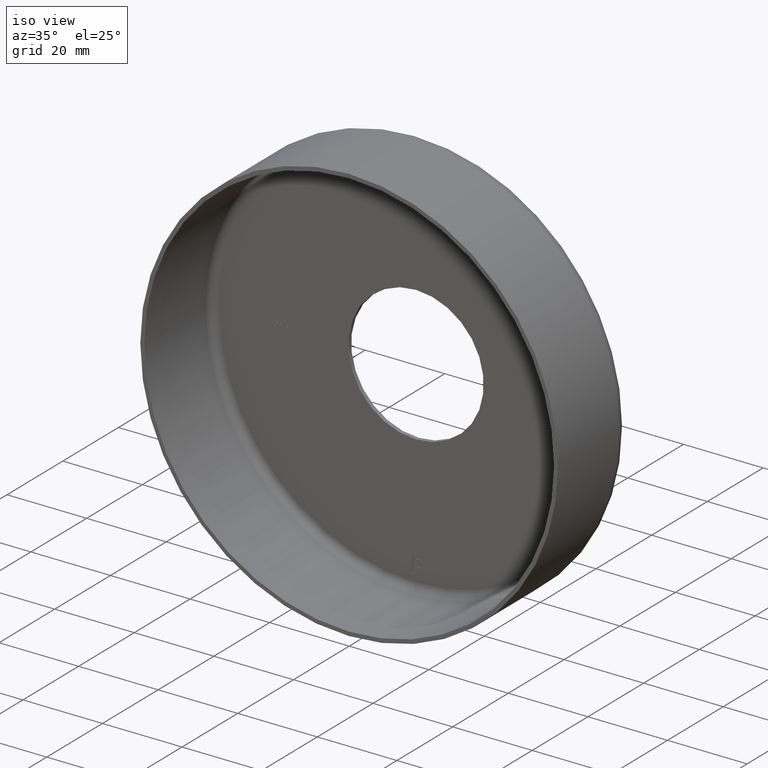
[diagram: clean part render]
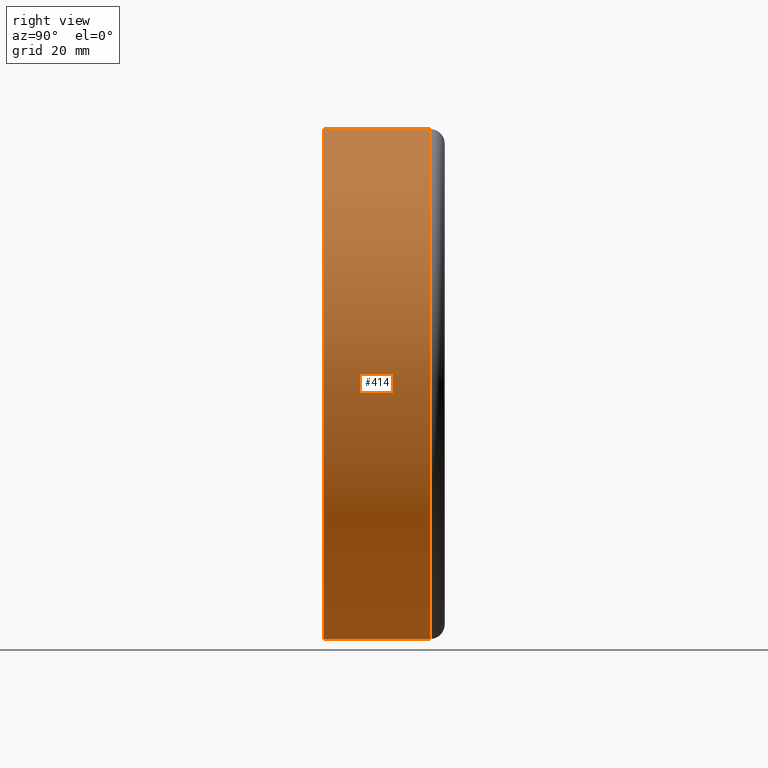
[diagram: tour spotlight — one face highlighted and labeled with its STEP entity id]
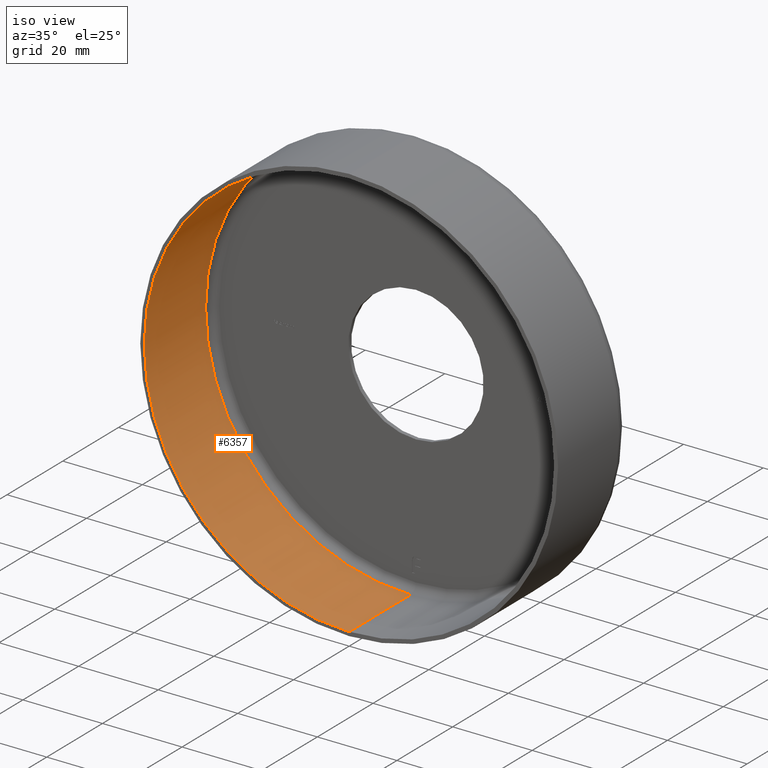
[diagram: tour spotlight — one face highlighted and labeled with its STEP entity id]
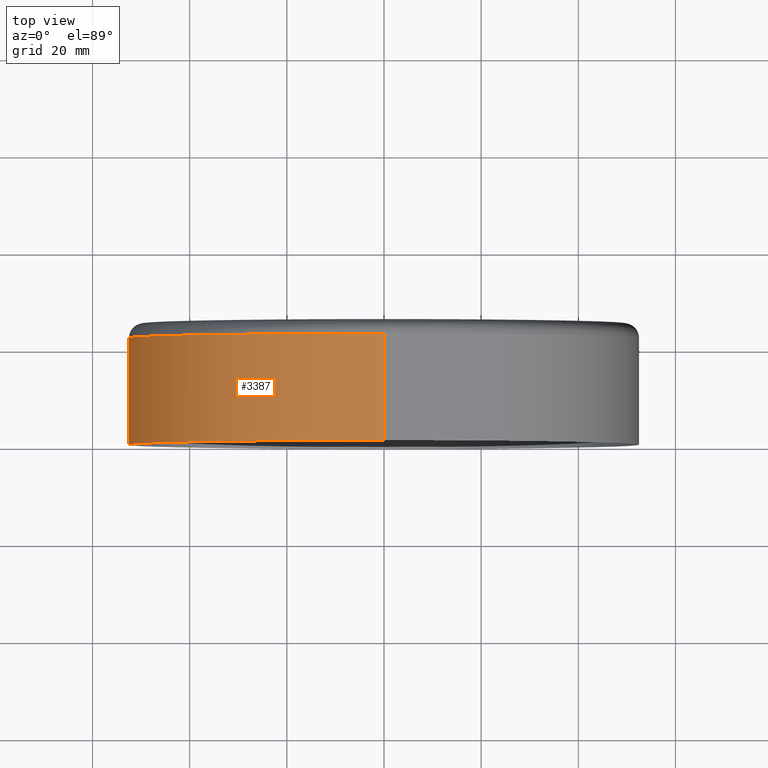
[diagram: tour spotlight — one face highlighted and labeled with its STEP entity id]
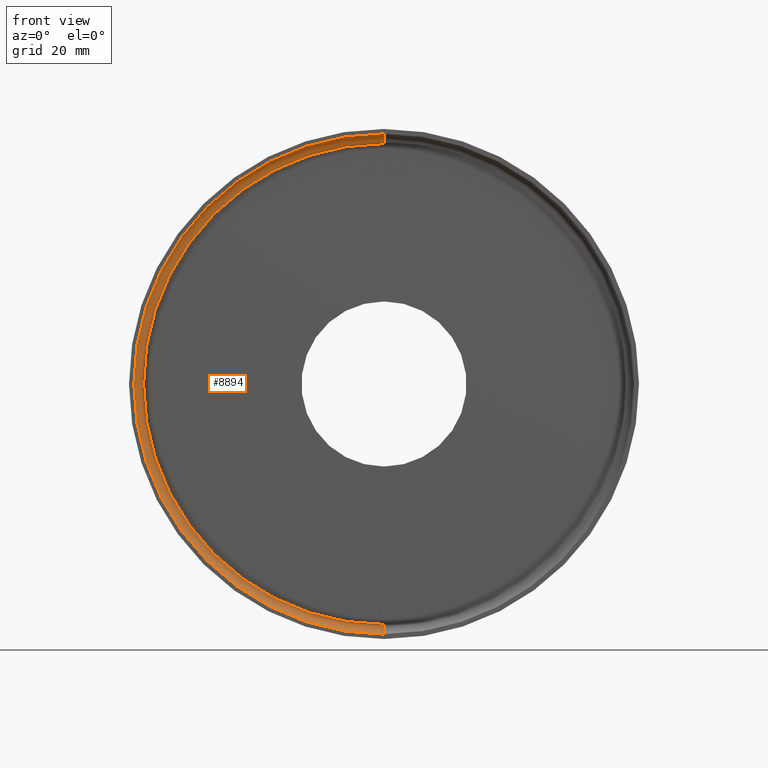
[diagram: tour spotlight — one face highlighted and labeled with its STEP entity id]
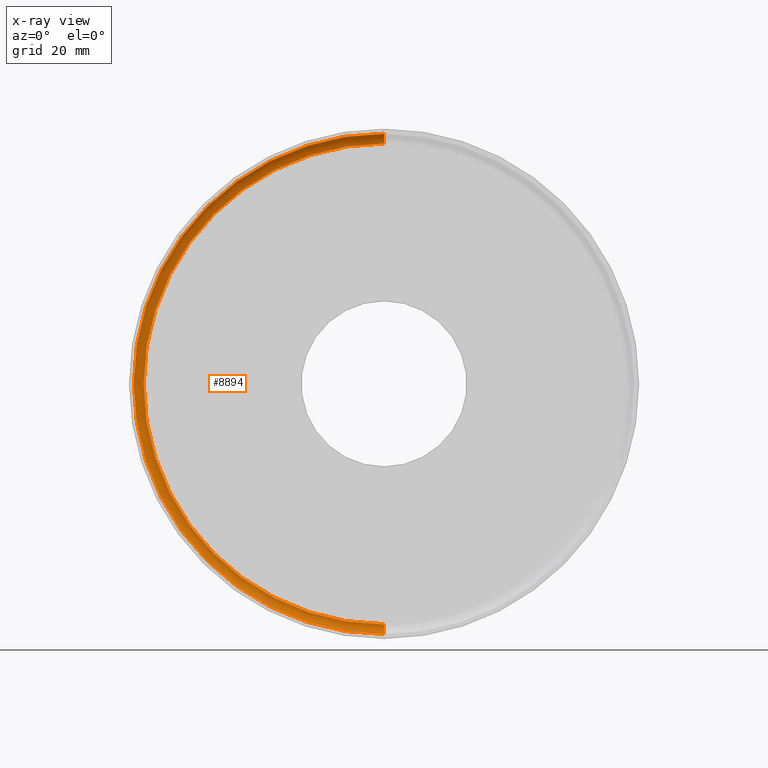
[diagram: x-ray of the same camera — body ghosted, this tour face saturated]
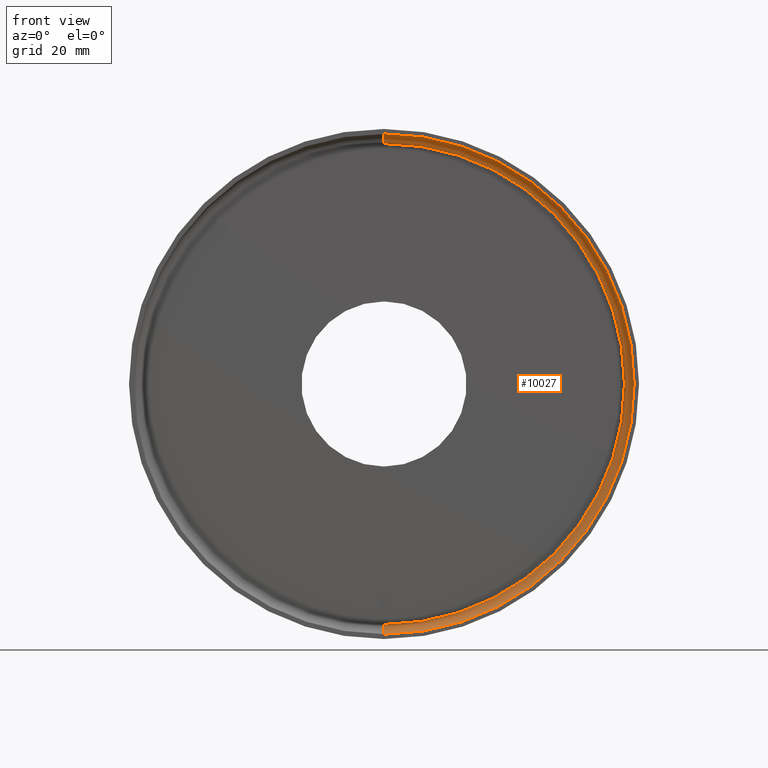
[diagram: tour spotlight — one face highlighted and labeled with its STEP entity id]
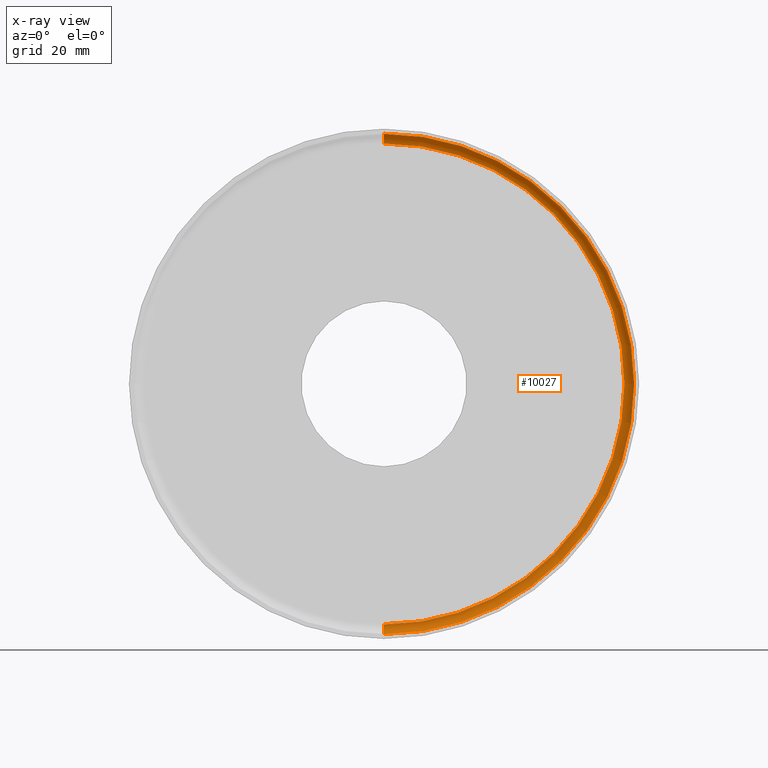
[diagram: x-ray of the same camera — body ghosted, this tour face saturated]
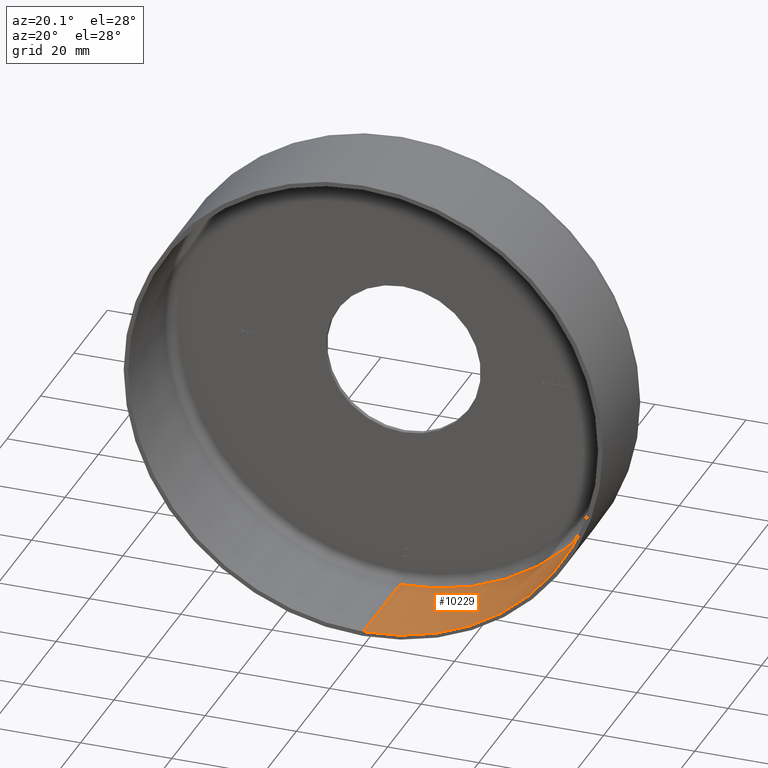
[diagram: tour spotlight — one face highlighted and labeled with its STEP entity id]
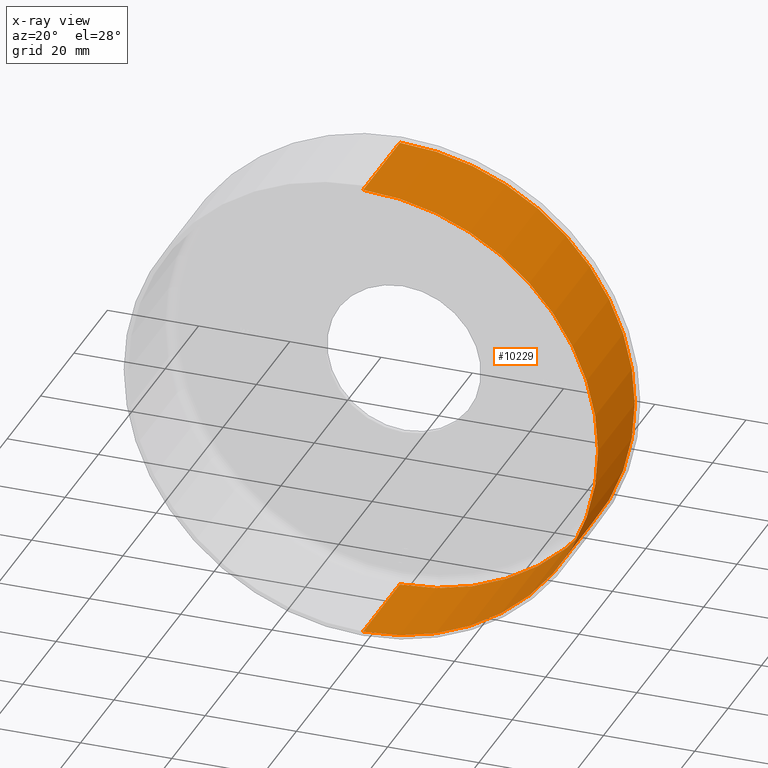
[diagram: x-ray of the same camera — body ghosted, this tour face saturated]
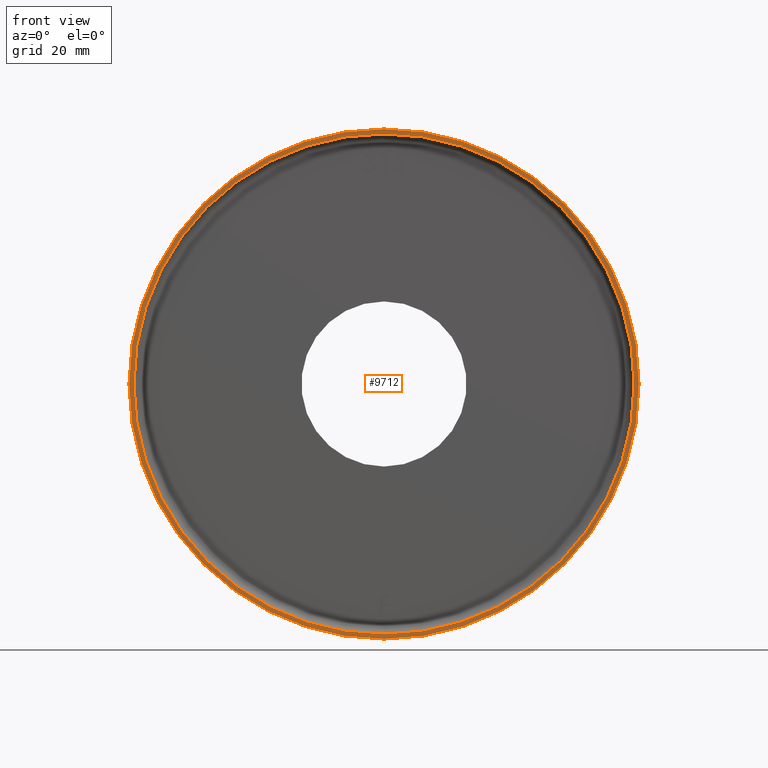
[diagram: tour spotlight — one face highlighted and labeled with its STEP entity id]
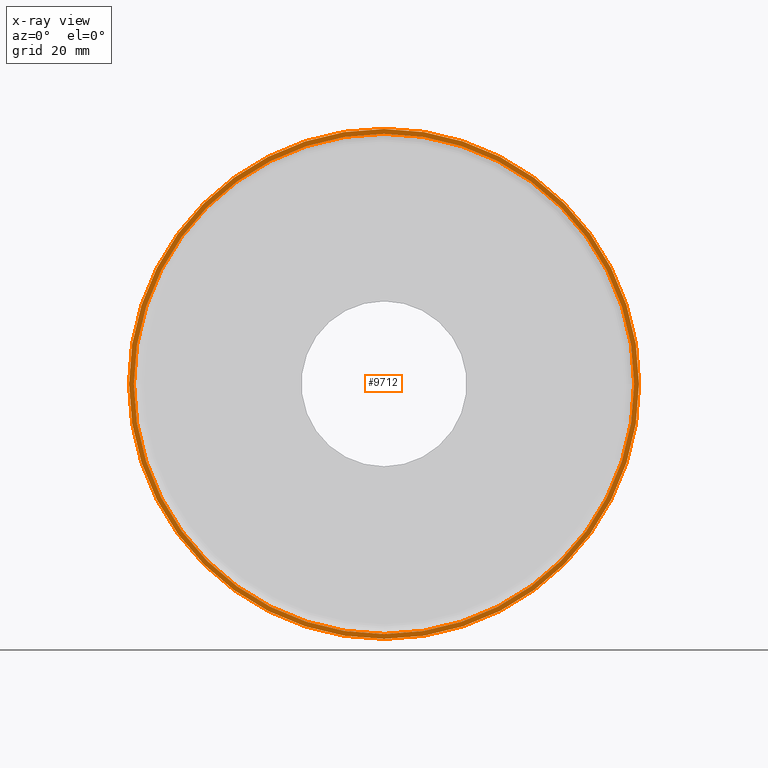
[diagram: x-ray of the same camera — body ghosted, this tour face saturated]
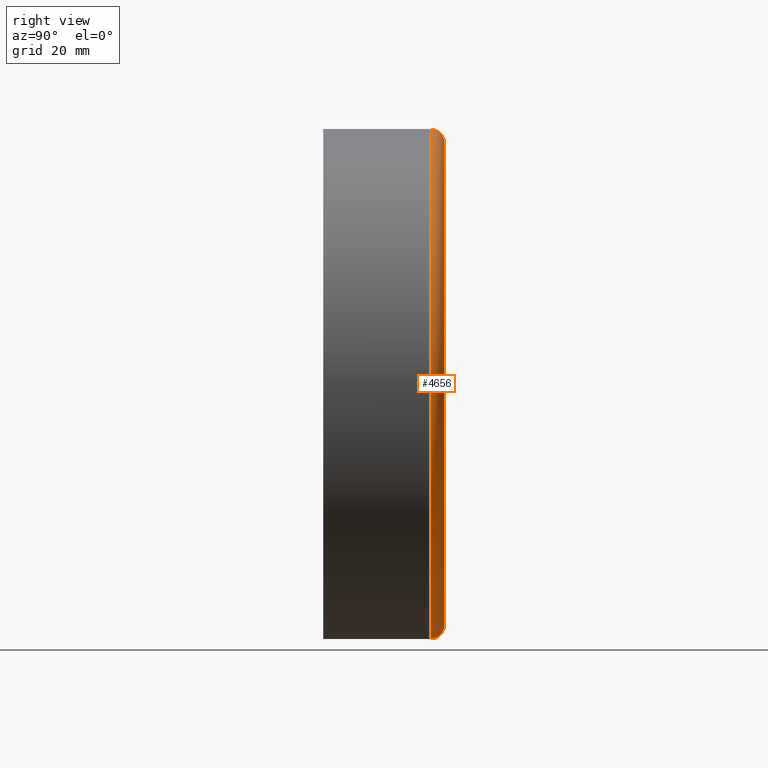
[diagram: tour spotlight — one face highlighted and labeled with its STEP entity id]
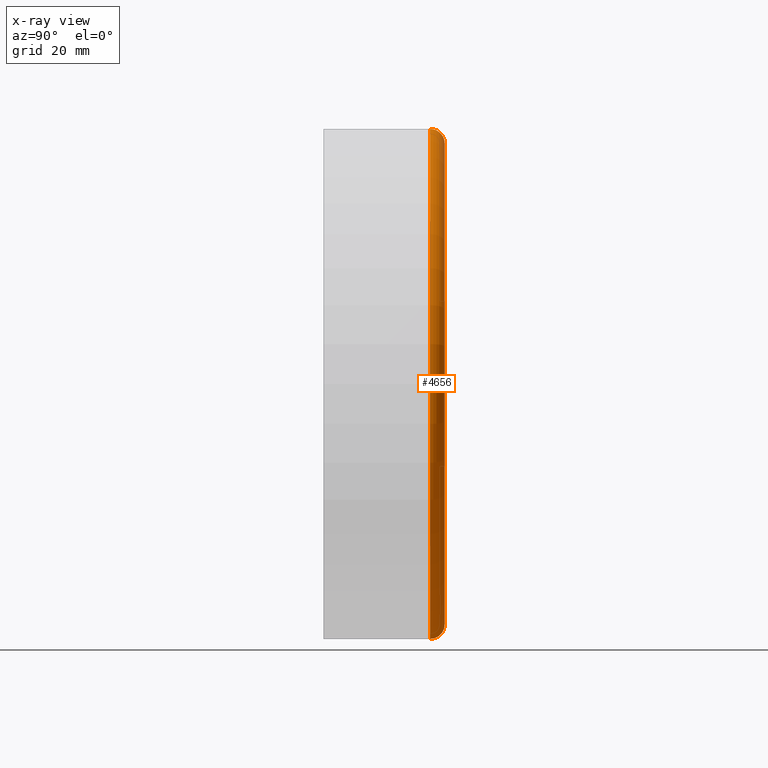
[diagram: x-ray of the same camera — body ghosted, this tour face saturated]
A machine part: a face-by-face anatomy tour. The part has 280 B-rep faces; the first image is the clean iso view, then the 8 largest visible faces are spotlighted one at a time (largest first), each with its STEP entity span.

Face 1 — right view, entity #414. In plain terms, the highlighted cylindrical surface (partial cylindrical patch) has radius 52.5 mm, axis along (-0, -1, -0).
Definition (entity closure, byte-faithful):
#414 = ADVANCED_FACE ( 'NONE', ( #13389 ), #12574, .T. ) ;
#864 = ORIENTED_EDGE ( 'NONE', *, *, #11518, .F. ) ;
#1006 = VERTEX_POINT ( 'NONE', #10151 ) ;
#1194 = DIRECTION ( 'NONE',  ( -0.000000000000000000, -1.000000000000000000, -0.000000000000000000 ) ) ;
#1372 = LINE ( 'NONE', #1881, #3014 ) ;
#1400 = CARTESIAN_POINT ( 'NONE',  ( 0.000000000000000000, 22.00000000000000355, 0.000000000000000000 ) ) ;
#1451 = CIRCLE ( 'NONE', #7148, 52.50000000000000711 ) ;
#1524 = EDGE_LOOP ( 'NONE', ( #3334, #9872, #864, #6268 ) ) ;
#1588 = DIRECTION ( 'NONE',  ( -0.000000000000000000, -1.000000000000000000, -0.000000000000000000 ) ) ;
#1881 = CARTESIAN_POINT ( 'NONE',  ( 0.000000000000000000, 0.000000000000000000, -52.50000000000000711 ) ) ;
#2123 = VECTOR ( 'NONE', #5783, 1000.000000000000000 ) ;
#2375 = DIRECTION ( 'NONE',  ( -0.000000000000000000, -1.000000000000000000, -0.000000000000000000 ) ) ;
#2627 = LINE ( 'NONE', #7940, #2123 ) ;
#2818 = DIRECTION ( 'NONE',  ( -0.000000000000000000, -1.000000000000000000, -0.000000000000000000 ) ) ;
#3014 = VECTOR ( 'NONE', #2818, 1000.000000000000000 ) ;
#3231 = DIRECTION ( 'NONE',  ( 0.000000000000000000, 0.000000000000000000, -1.000000000000000000 ) ) ;
#3294 = CARTESIAN_POINT ( 'NONE',  ( 6.429395695523604744E-15, 0.000000000000000000, 52.50000000000000711 ) ) ;
#3334 = ORIENTED_EDGE ( 'NONE', *, *, #13587, .T. ) ;
#4553 = VERTEX_POINT ( 'NONE', #3294 ) ;
#4982 = CARTESIAN_POINT ( 'NONE',  ( 6.429395695523604744E-15, 22.00000000000000355, 52.50000000000000711 ) ) ;
#5783 = DIRECTION ( 'NONE',  ( -0.000000000000000000, -1.000000000000000000, -0.000000000000000000 ) ) ;
#6268 = ORIENTED_EDGE ( 'NONE', *, *, #12822, .F. ) ;
#6399 = CARTESIAN_POINT ( 'NONE',  ( 0.000000000000000000, 0.000000000000000000, 0.000000000000000000 ) ) ;
#7148 = AXIS2_PLACEMENT_3D ( 'NONE', #1400, #1588, #7930 ) ;
#7598 = CARTESIAN_POINT ( 'NONE',  ( 0.000000000000000000, 0.000000000000000000, 0.000000000000000000 ) ) ;
#7930 = DIRECTION ( 'NONE',  ( 0.000000000000000000, 0.000000000000000000, -1.000000000000000000 ) ) ;
#7940 = CARTESIAN_POINT ( 'NONE',  ( 6.429395695523604744E-15, 0.000000000000000000, 52.50000000000000711 ) ) ;
#9570 = VERTEX_POINT ( 'NONE', #9792 ) ;
#9792 = CARTESIAN_POINT ( 'NONE',  ( 0.000000000000000000, 22.00000000000000355, -52.50000000000000711 ) ) ;
#9872 = ORIENTED_EDGE ( 'NONE', *, *, #13226, .T. ) ;
#10151 = CARTESIAN_POINT ( 'NONE',  ( 0.000000000000000000, 0.000000000000000000, -52.50000000000000711 ) ) ;
#10651 = AXIS2_PLACEMENT_3D ( 'NONE', #6399, #1194, #3231 ) ;
#11000 = DIRECTION ( 'NONE',  ( 0.000000000000000000, 0.000000000000000000, -1.000000000000000000 ) ) ;
#11518 = EDGE_CURVE ( 'NONE', #1006, #4553, #13648, .T. ) ;
#11773 = AXIS2_PLACEMENT_3D ( 'NONE', #7598, #2375, #11000 ) ;
#12574 = CYLINDRICAL_SURFACE ( 'NONE', #10651, 52.50000000000000711 ) ;
#12822 = EDGE_CURVE ( 'NONE', #9570, #1006, #1372, .T. ) ;
#12837 = VERTEX_POINT ( 'NONE', #4982 ) ;
#13226 = EDGE_CURVE ( 'NONE', #12837, #4553, #2627, .T. ) ;
#13389 = FACE_OUTER_BOUND ( 'NONE', #1524, .T. ) ;
#13587 = EDGE_CURVE ( 'NONE', #9570, #12837, #1451, .T. ) ;
#13648 = CIRCLE ( 'NONE', #11773, 52.50000000000000711 ) ;

Face 2 — iso view, entity #6357. In plain terms, the highlighted cylindrical surface (partial cylindrical patch) has radius 51.5 mm, axis along (-0, -1, -0).
Definition (entity closure, byte-faithful):
#2 = DIRECTION ( 'NONE',  ( -0.000000000000000000, -1.000000000000000000, -0.000000000000000000 ) ) ;
#789 = VERTEX_POINT ( 'NONE', #12910 ) ;
#827 = VERTEX_POINT ( 'NONE', #2446 ) ;
#1876 = EDGE_CURVE ( 'NONE', #827, #7422, #6456, .T. ) ;
#2414 = CARTESIAN_POINT ( 'NONE',  ( 0.000000000000000000, 22.00000000000000355, 0.000000000000000000 ) ) ;
#2446 = CARTESIAN_POINT ( 'NONE',  ( 6.306931015608869596E-15, -1.224646799147353207E-16, 51.50000000000000711 ) ) ;
#2483 = DIRECTION ( 'NONE',  ( -0.000000000000000000, -1.000000000000000000, -0.000000000000000000 ) ) ;
#2541 = VERTEX_POINT ( 'NONE', #13454 ) ;
#2611 = CIRCLE ( 'NONE', #9592, 51.50000000000000711 ) ;
#3048 = DIRECTION ( 'NONE',  ( -0.000000000000000000, -1.000000000000000000, -0.000000000000000000 ) ) ;
#3149 = CARTESIAN_POINT ( 'NONE',  ( 0.000000000000000000, -1.224646799147353207E-16, 0.000000000000000000 ) ) ;
#3320 = EDGE_CURVE ( 'NONE', #2541, #789, #2611, .T. ) ;
#3943 = ORIENTED_EDGE ( 'NONE', *, *, #3320, .F. ) ;
#4698 = CARTESIAN_POINT ( 'NONE',  ( 0.000000000000000000, 0.000000000000000000, 0.000000000000000000 ) ) ;
#5420 = CARTESIAN_POINT ( 'NONE',  ( 0.000000000000000000, -1.224646799147353207E-16, -51.50000000000000711 ) ) ;
#5470 = EDGE_CURVE ( 'NONE', #2541, #827, #7095, .T. ) ;
#5973 = LINE ( 'NONE', #11673, #11645 ) ;
#6357 = ADVANCED_FACE ( 'NONE', ( #10736 ), #12583, .F. ) ;
#6456 = CIRCLE ( 'NONE', #12457, 51.50000000000000711 ) ;
#6670 = DIRECTION ( 'NONE',  ( -0.000000000000000000, -1.000000000000000000, -0.000000000000000000 ) ) ;
#6762 = VECTOR ( 'NONE', #9982, 1000.000000000000000 ) ;
#7095 = LINE ( 'NONE', #8752, #6762 ) ;
#7422 = VERTEX_POINT ( 'NONE', #5420 ) ;
#7435 = DIRECTION ( 'NONE',  ( 0.000000000000000000, 0.000000000000000000, -1.000000000000000000 ) ) ;
#7775 = ORIENTED_EDGE ( 'NONE', *, *, #1876, .T. ) ;
#8752 = CARTESIAN_POINT ( 'NONE',  ( 6.306931015608869596E-15, 0.000000000000000000, 51.50000000000000711 ) ) ;
#9592 = AXIS2_PLACEMENT_3D ( 'NONE', #2414, #6670, #12955 ) ;
#9852 = EDGE_LOOP ( 'NONE', ( #3943, #12926, #7775, #10774 ) ) ;
#9982 = DIRECTION ( 'NONE',  ( -0.000000000000000000, -1.000000000000000000, -0.000000000000000000 ) ) ;
#10088 = DIRECTION ( 'NONE',  ( 0.000000000000000000, 0.000000000000000000, -1.000000000000000000 ) ) ;
#10736 = FACE_OUTER_BOUND ( 'NONE', #9852, .T. ) ;
#10774 = ORIENTED_EDGE ( 'NONE', *, *, #12245, .F. ) ;
#11645 = VECTOR ( 'NONE', #2, 1000.000000000000000 ) ;
#11673 = CARTESIAN_POINT ( 'NONE',  ( 0.000000000000000000, 0.000000000000000000, -51.50000000000000711 ) ) ;
#12245 = EDGE_CURVE ( 'NONE', #789, #7422, #5973, .T. ) ;
#12284 = AXIS2_PLACEMENT_3D ( 'NONE', #4698, #2483, #10088 ) ;
#12457 = AXIS2_PLACEMENT_3D ( 'NONE', #3149, #3048, #7435 ) ;
#12583 = CYLINDRICAL_SURFACE ( 'NONE', #12284, 51.50000000000000711 ) ;
#12910 = CARTESIAN_POINT ( 'NONE',  ( 0.000000000000000000, 22.00000000000000355, -51.50000000000000711 ) ) ;
#12926 = ORIENTED_EDGE ( 'NONE', *, *, #5470, .T. ) ;
#12955 = DIRECTION ( 'NONE',  ( 0.000000000000000000, 0.000000000000000000, -1.000000000000000000 ) ) ;
#13454 = CARTESIAN_POINT ( 'NONE',  ( 6.306931015608869596E-15, 22.00000000000000355, 51.50000000000000711 ) ) ;

Face 3 — top view, entity #3387. In plain terms, the highlighted cylindrical surface (partial cylindrical patch) has radius 52.5 mm, axis along (-0, -1, -0).
Definition (entity closure, byte-faithful):
#657 = FACE_OUTER_BOUND ( 'NONE', #9619, .T. ) ;
#1006 = VERTEX_POINT ( 'NONE', #10151 ) ;
#1372 = LINE ( 'NONE', #1881, #3014 ) ;
#1881 = CARTESIAN_POINT ( 'NONE',  ( 0.000000000000000000, 0.000000000000000000, -52.50000000000000711 ) ) ;
#2123 = VECTOR ( 'NONE', #5783, 1000.000000000000000 ) ;
#2627 = LINE ( 'NONE', #7940, #2123 ) ;
#2818 = DIRECTION ( 'NONE',  ( -0.000000000000000000, -1.000000000000000000, -0.000000000000000000 ) ) ;
#2826 = CIRCLE ( 'NONE', #9977, 52.50000000000000711 ) ;
#3014 = VECTOR ( 'NONE', #2818, 1000.000000000000000 ) ;
#3294 = CARTESIAN_POINT ( 'NONE',  ( 6.429395695523604744E-15, 0.000000000000000000, 52.50000000000000711 ) ) ;
#3357 = DIRECTION ( 'NONE',  ( -0.000000000000000000, -1.000000000000000000, -0.000000000000000000 ) ) ;
#3387 = ADVANCED_FACE ( 'NONE', ( #657 ), #9298, .T. ) ;
#4457 = ORIENTED_EDGE ( 'NONE', *, *, #4598, .T. ) ;
#4553 = VERTEX_POINT ( 'NONE', #3294 ) ;
#4554 = DIRECTION ( 'NONE',  ( -0.000000000000000000, -1.000000000000000000, -0.000000000000000000 ) ) ;
#4598 = EDGE_CURVE ( 'NONE', #12837, #9570, #10099, .T. ) ;
#4721 = ORIENTED_EDGE ( 'NONE', *, *, #10881, .F. ) ;
#4982 = CARTESIAN_POINT ( 'NONE',  ( 6.429395695523604744E-15, 22.00000000000000355, 52.50000000000000711 ) ) ;
#5783 = DIRECTION ( 'NONE',  ( -0.000000000000000000, -1.000000000000000000, -0.000000000000000000 ) ) ;
#6522 = DIRECTION ( 'NONE',  ( 0.000000000000000000, 0.000000000000000000, -1.000000000000000000 ) ) ;
#6923 = AXIS2_PLACEMENT_3D ( 'NONE', #10896, #9686, #6522 ) ;
#7617 = CARTESIAN_POINT ( 'NONE',  ( 0.000000000000000000, 0.000000000000000000, 0.000000000000000000 ) ) ;
#7940 = CARTESIAN_POINT ( 'NONE',  ( 6.429395695523604744E-15, 0.000000000000000000, 52.50000000000000711 ) ) ;
#9298 = CYLINDRICAL_SURFACE ( 'NONE', #10748, 52.50000000000000711 ) ;
#9570 = VERTEX_POINT ( 'NONE', #9792 ) ;
#9619 = EDGE_LOOP ( 'NONE', ( #10251, #4457, #13114, #4721 ) ) ;
#9686 = DIRECTION ( 'NONE',  ( -0.000000000000000000, -1.000000000000000000, -0.000000000000000000 ) ) ;
#9792 = CARTESIAN_POINT ( 'NONE',  ( 0.000000000000000000, 22.00000000000000355, -52.50000000000000711 ) ) ;
#9977 = AXIS2_PLACEMENT_3D ( 'NONE', #7617, #4554, #11984 ) ;
#10099 = CIRCLE ( 'NONE', #6923, 52.50000000000000711 ) ;
#10151 = CARTESIAN_POINT ( 'NONE',  ( 0.000000000000000000, 0.000000000000000000, -52.50000000000000711 ) ) ;
#10251 = ORIENTED_EDGE ( 'NONE', *, *, #13226, .F. ) ;
#10748 = AXIS2_PLACEMENT_3D ( 'NONE', #11929, #3357, #13044 ) ;
#10881 = EDGE_CURVE ( 'NONE', #4553, #1006, #2826, .T. ) ;
#10896 = CARTESIAN_POINT ( 'NONE',  ( 0.000000000000000000, 22.00000000000000355, 0.000000000000000000 ) ) ;
#11929 = CARTESIAN_POINT ( 'NONE',  ( 0.000000000000000000, 0.000000000000000000, 0.000000000000000000 ) ) ;
#11984 = DIRECTION ( 'NONE',  ( 0.000000000000000000, 0.000000000000000000, -1.000000000000000000 ) ) ;
#12822 = EDGE_CURVE ( 'NONE', #9570, #1006, #1372, .T. ) ;
#12837 = VERTEX_POINT ( 'NONE', #4982 ) ;
#13044 = DIRECTION ( 'NONE',  ( 0.000000000000000000, 0.000000000000000000, -1.000000000000000000 ) ) ;
#13114 = ORIENTED_EDGE ( 'NONE', *, *, #12822, .T. ) ;
#13226 = EDGE_CURVE ( 'NONE', #12837, #4553, #2627, .T. ) ;

Face 4 — front view, entity #8894. An x-ray twin of the same camera follows (body ghosted, this face saturated) — the face is partly hidden behind the body. In plain terms, the highlighted toroidal blend (fillet) surface has major radius 49.5 mm and minor (blend) radius 2 mm.
Definition (entity closure, byte-faithful):
#465 = EDGE_CURVE ( 'NONE', #4022, #2541, #11569, .T. ) ;
#728 = DIRECTION ( 'NONE',  ( -1.000000000000000000, 0.000000000000000000, 0.000000000000000000 ) ) ;
#789 = VERTEX_POINT ( 'NONE', #12910 ) ;
#943 = CARTESIAN_POINT ( 'NONE',  ( 0.000000000000000000, 22.00000000000000355, 0.000000000000000000 ) ) ;
#1234 = DIRECTION ( 'NONE',  ( -0.000000000000000000, -1.000000000000000000, -0.000000000000000000 ) ) ;
#1285 = CARTESIAN_POINT ( 'NONE',  ( 0.000000000000000000, 24.00000000000000000, -49.50000000000000000 ) ) ;
#1356 = FACE_OUTER_BOUND ( 'NONE', #2790, .T. ) ;
#1995 = DIRECTION ( 'NONE',  ( -0.000000000000000000, -1.000000000000000000, -0.000000000000000000 ) ) ;
#2414 = CARTESIAN_POINT ( 'NONE',  ( 0.000000000000000000, 22.00000000000000355, 0.000000000000000000 ) ) ;
#2541 = VERTEX_POINT ( 'NONE', #13454 ) ;
#2595 = CARTESIAN_POINT ( 'NONE',  ( 6.184466335694133659E-15, 24.00000000000000000, 49.50000000000000000 ) ) ;
#2611 = CIRCLE ( 'NONE', #9592, 51.50000000000000711 ) ;
#2790 = EDGE_LOOP ( 'NONE', ( #10164, #10050, #6809, #13548 ) ) ;
#2884 = DIRECTION ( 'NONE',  ( 0.000000000000000000, 0.000000000000000000, 1.000000000000000000 ) ) ;
#3320 = EDGE_CURVE ( 'NONE', #2541, #789, #2611, .T. ) ;
#3706 = TOROIDAL_SURFACE ( 'NONE', #4539, 49.50000000000000000, 2.000000000000000000 ) ;
#4022 = VERTEX_POINT ( 'NONE', #2595 ) ;
#4539 = AXIS2_PLACEMENT_3D ( 'NONE', #943, #1995, #9459 ) ;
#4643 = AXIS2_PLACEMENT_3D ( 'NONE', #9159, #728, #2884 ) ;
#4679 = DIRECTION ( 'NONE',  ( -1.224646799147353454E-16, 0.000000000000000000, -1.000000000000000000 ) ) ;
#4717 = CIRCLE ( 'NONE', #9609, 49.50000000000000000 ) ;
#5307 = CARTESIAN_POINT ( 'NONE',  ( 6.062001655779398511E-15, 22.00000000000000355, 49.50000000000000000 ) ) ;
#6670 = DIRECTION ( 'NONE',  ( -0.000000000000000000, -1.000000000000000000, -0.000000000000000000 ) ) ;
#6809 = ORIENTED_EDGE ( 'NONE', *, *, #3320, .T. ) ;
#7520 = DIRECTION ( 'NONE',  ( 1.000000000000000000, 0.000000000000000000, -1.224646799147353207E-16 ) ) ;
#7604 = CARTESIAN_POINT ( 'NONE',  ( 0.000000000000000000, 24.00000000000000000, 0.000000000000000000 ) ) ;
#8530 = EDGE_CURVE ( 'NONE', #4022, #10817, #4717, .T. ) ;
#8703 = DIRECTION ( 'NONE',  ( 0.000000000000000000, 0.000000000000000000, -1.000000000000000000 ) ) ;
#8894 = ADVANCED_FACE ( 'NONE', ( #1356 ), #3706, .F. ) ;
#9159 = CARTESIAN_POINT ( 'NONE',  ( 0.000000000000000000, 22.00000000000000355, -49.50000000000000000 ) ) ;
#9459 = DIRECTION ( 'NONE',  ( 0.000000000000000000, 0.000000000000000000, -1.000000000000000000 ) ) ;
#9592 = AXIS2_PLACEMENT_3D ( 'NONE', #2414, #6670, #12955 ) ;
#9609 = AXIS2_PLACEMENT_3D ( 'NONE', #7604, #1234, #8703 ) ;
#10050 = ORIENTED_EDGE ( 'NONE', *, *, #465, .T. ) ;
#10164 = ORIENTED_EDGE ( 'NONE', *, *, #8530, .F. ) ;
#10643 = CIRCLE ( 'NONE', #4643, 2.000000000000001776 ) ;
#10817 = VERTEX_POINT ( 'NONE', #1285 ) ;
#11569 = CIRCLE ( 'NONE', #12540, 2.000000000000001776 ) ;
#11703 = EDGE_CURVE ( 'NONE', #10817, #789, #10643, .T. ) ;
#12540 = AXIS2_PLACEMENT_3D ( 'NONE', #5307, #7520, #4679 ) ;
#12910 = CARTESIAN_POINT ( 'NONE',  ( 0.000000000000000000, 22.00000000000000355, -51.50000000000000711 ) ) ;
#12955 = DIRECTION ( 'NONE',  ( 0.000000000000000000, 0.000000000000000000, -1.000000000000000000 ) ) ;
#13454 = CARTESIAN_POINT ( 'NONE',  ( 6.306931015608869596E-15, 22.00000000000000355, 51.50000000000000711 ) ) ;
#13548 = ORIENTED_EDGE ( 'NONE', *, *, #11703, .F. ) ;

Face 5 — front view, entity #10027. An x-ray twin of the same camera follows (body ghosted, this face saturated) — the face is partly hidden behind the body. In plain terms, the highlighted toroidal blend (fillet) surface has major radius 49.5 mm and minor (blend) radius 2 mm.
Definition (entity closure, byte-faithful):
#465 = EDGE_CURVE ( 'NONE', #4022, #2541, #11569, .T. ) ;
#554 = CARTESIAN_POINT ( 'NONE',  ( 0.000000000000000000, 22.00000000000000355, 0.000000000000000000 ) ) ;
#728 = DIRECTION ( 'NONE',  ( -1.000000000000000000, 0.000000000000000000, 0.000000000000000000 ) ) ;
#789 = VERTEX_POINT ( 'NONE', #12910 ) ;
#1020 = FACE_OUTER_BOUND ( 'NONE', #11532, .T. ) ;
#1285 = CARTESIAN_POINT ( 'NONE',  ( 0.000000000000000000, 24.00000000000000000, -49.50000000000000000 ) ) ;
#2477 = AXIS2_PLACEMENT_3D ( 'NONE', #3121, #10627, #8513 ) ;
#2541 = VERTEX_POINT ( 'NONE', #13454 ) ;
#2595 = CARTESIAN_POINT ( 'NONE',  ( 6.184466335694133659E-15, 24.00000000000000000, 49.50000000000000000 ) ) ;
#2884 = DIRECTION ( 'NONE',  ( 0.000000000000000000, 0.000000000000000000, 1.000000000000000000 ) ) ;
#3121 = CARTESIAN_POINT ( 'NONE',  ( 0.000000000000000000, 24.00000000000000000, 0.000000000000000000 ) ) ;
#3441 = EDGE_CURVE ( 'NONE', #789, #2541, #10949, .T. ) ;
#3474 = CIRCLE ( 'NONE', #2477, 49.50000000000000000 ) ;
#3880 = ORIENTED_EDGE ( 'NONE', *, *, #11703, .T. ) ;
#4022 = VERTEX_POINT ( 'NONE', #2595 ) ;
#4068 = AXIS2_PLACEMENT_3D ( 'NONE', #554, #7984, #9060 ) ;
#4643 = AXIS2_PLACEMENT_3D ( 'NONE', #9159, #728, #2884 ) ;
#4679 = DIRECTION ( 'NONE',  ( -1.224646799147353454E-16, 0.000000000000000000, -1.000000000000000000 ) ) ;
#5307 = CARTESIAN_POINT ( 'NONE',  ( 6.062001655779398511E-15, 22.00000000000000355, 49.50000000000000000 ) ) ;
#5581 = CARTESIAN_POINT ( 'NONE',  ( 0.000000000000000000, 22.00000000000000355, 0.000000000000000000 ) ) ;
#6673 = AXIS2_PLACEMENT_3D ( 'NONE', #5581, #13041, #13080 ) ;
#7520 = DIRECTION ( 'NONE',  ( 1.000000000000000000, 0.000000000000000000, -1.224646799147353207E-16 ) ) ;
#7980 = ORIENTED_EDGE ( 'NONE', *, *, #11351, .F. ) ;
#7984 = DIRECTION ( 'NONE',  ( -0.000000000000000000, -1.000000000000000000, -0.000000000000000000 ) ) ;
#8513 = DIRECTION ( 'NONE',  ( 0.000000000000000000, 0.000000000000000000, -1.000000000000000000 ) ) ;
#8605 = ORIENTED_EDGE ( 'NONE', *, *, #465, .F. ) ;
#9060 = DIRECTION ( 'NONE',  ( 0.000000000000000000, 0.000000000000000000, -1.000000000000000000 ) ) ;
#9159 = CARTESIAN_POINT ( 'NONE',  ( 0.000000000000000000, 22.00000000000000355, -49.50000000000000000 ) ) ;
#10027 = ADVANCED_FACE ( 'NONE', ( #1020 ), #10346, .F. ) ;
#10346 = TOROIDAL_SURFACE ( 'NONE', #6673, 49.50000000000000000, 2.000000000000000000 ) ;
#10627 = DIRECTION ( 'NONE',  ( -0.000000000000000000, -1.000000000000000000, -0.000000000000000000 ) ) ;
#10643 = CIRCLE ( 'NONE', #4643, 2.000000000000001776 ) ;
#10817 = VERTEX_POINT ( 'NONE', #1285 ) ;
#10949 = CIRCLE ( 'NONE', #4068, 51.50000000000000711 ) ;
#11351 = EDGE_CURVE ( 'NONE', #10817, #4022, #3474, .T. ) ;
#11532 = EDGE_LOOP ( 'NONE', ( #8605, #7980, #3880, #12426 ) ) ;
#11569 = CIRCLE ( 'NONE', #12540, 2.000000000000001776 ) ;
#11703 = EDGE_CURVE ( 'NONE', #10817, #789, #10643, .T. ) ;
#12426 = ORIENTED_EDGE ( 'NONE', *, *, #3441, .T. ) ;
#12540 = AXIS2_PLACEMENT_3D ( 'NONE', #5307, #7520, #4679 ) ;
#12910 = CARTESIAN_POINT ( 'NONE',  ( 0.000000000000000000, 22.00000000000000355, -51.50000000000000711 ) ) ;
#13041 = DIRECTION ( 'NONE',  ( -0.000000000000000000, -1.000000000000000000, -0.000000000000000000 ) ) ;
#13080 = DIRECTION ( 'NONE',  ( 0.000000000000000000, 0.000000000000000000, -1.000000000000000000 ) ) ;
#13454 = CARTESIAN_POINT ( 'NONE',  ( 6.306931015608869596E-15, 22.00000000000000355, 51.50000000000000711 ) ) ;

Face 6 — auxiliary view, entity #10229. An x-ray twin of the same camera follows (body ghosted, this face saturated) — the face is partly hidden behind the body. In plain terms, the highlighted cylindrical surface (partial cylindrical patch) has radius 51.5 mm, axis along (-0, -1, -0).
Definition (entity closure, byte-faithful):
#2 = DIRECTION ( 'NONE',  ( -0.000000000000000000, -1.000000000000000000, -0.000000000000000000 ) ) ;
#554 = CARTESIAN_POINT ( 'NONE',  ( 0.000000000000000000, 22.00000000000000355, 0.000000000000000000 ) ) ;
#705 = CYLINDRICAL_SURFACE ( 'NONE', #11138, 51.50000000000000711 ) ;
#789 = VERTEX_POINT ( 'NONE', #12910 ) ;
#827 = VERTEX_POINT ( 'NONE', #2446 ) ;
#1516 = DIRECTION ( 'NONE',  ( -0.000000000000000000, -1.000000000000000000, -0.000000000000000000 ) ) ;
#1681 = DIRECTION ( 'NONE',  ( 0.000000000000000000, 0.000000000000000000, -1.000000000000000000 ) ) ;
#2244 = ORIENTED_EDGE ( 'NONE', *, *, #3441, .F. ) ;
#2446 = CARTESIAN_POINT ( 'NONE',  ( 6.306931015608869596E-15, -1.224646799147353207E-16, 51.50000000000000711 ) ) ;
#2541 = VERTEX_POINT ( 'NONE', #13454 ) ;
#2671 = EDGE_LOOP ( 'NONE', ( #11170, #2244, #8855, #10262 ) ) ;
#3441 = EDGE_CURVE ( 'NONE', #789, #2541, #10949, .T. ) ;
#4068 = AXIS2_PLACEMENT_3D ( 'NONE', #554, #7984, #9060 ) ;
#5420 = CARTESIAN_POINT ( 'NONE',  ( 0.000000000000000000, -1.224646799147353207E-16, -51.50000000000000711 ) ) ;
#5470 = EDGE_CURVE ( 'NONE', #2541, #827, #7095, .T. ) ;
#5973 = LINE ( 'NONE', #11673, #11645 ) ;
#6342 = EDGE_CURVE ( 'NONE', #7422, #827, #7083, .T. ) ;
#6762 = VECTOR ( 'NONE', #9982, 1000.000000000000000 ) ;
#7083 = CIRCLE ( 'NONE', #10853, 51.50000000000000711 ) ;
#7095 = LINE ( 'NONE', #8752, #6762 ) ;
#7422 = VERTEX_POINT ( 'NONE', #5420 ) ;
#7984 = DIRECTION ( 'NONE',  ( -0.000000000000000000, -1.000000000000000000, -0.000000000000000000 ) ) ;
#8074 = CARTESIAN_POINT ( 'NONE',  ( 0.000000000000000000, 0.000000000000000000, 0.000000000000000000 ) ) ;
#8752 = CARTESIAN_POINT ( 'NONE',  ( 6.306931015608869596E-15, 0.000000000000000000, 51.50000000000000711 ) ) ;
#8848 = DIRECTION ( 'NONE',  ( 0.000000000000000000, 0.000000000000000000, -1.000000000000000000 ) ) ;
#8855 = ORIENTED_EDGE ( 'NONE', *, *, #12245, .T. ) ;
#9060 = DIRECTION ( 'NONE',  ( 0.000000000000000000, 0.000000000000000000, -1.000000000000000000 ) ) ;
#9152 = DIRECTION ( 'NONE',  ( -0.000000000000000000, -1.000000000000000000, -0.000000000000000000 ) ) ;
#9982 = DIRECTION ( 'NONE',  ( -0.000000000000000000, -1.000000000000000000, -0.000000000000000000 ) ) ;
#10047 = CARTESIAN_POINT ( 'NONE',  ( 0.000000000000000000, -1.224646799147353207E-16, 0.000000000000000000 ) ) ;
#10229 = ADVANCED_FACE ( 'NONE', ( #11509 ), #705, .F. ) ;
#10262 = ORIENTED_EDGE ( 'NONE', *, *, #6342, .T. ) ;
#10853 = AXIS2_PLACEMENT_3D ( 'NONE', #10047, #1516, #8848 ) ;
#10949 = CIRCLE ( 'NONE', #4068, 51.50000000000000711 ) ;
#11138 = AXIS2_PLACEMENT_3D ( 'NONE', #8074, #9152, #1681 ) ;
#11170 = ORIENTED_EDGE ( 'NONE', *, *, #5470, .F. ) ;
#11509 = FACE_OUTER_BOUND ( 'NONE', #2671, .T. ) ;
#11645 = VECTOR ( 'NONE', #2, 1000.000000000000000 ) ;
#11673 = CARTESIAN_POINT ( 'NONE',  ( 0.000000000000000000, 0.000000000000000000, -51.50000000000000711 ) ) ;
#12245 = EDGE_CURVE ( 'NONE', #789, #7422, #5973, .T. ) ;
#12910 = CARTESIAN_POINT ( 'NONE',  ( 0.000000000000000000, 22.00000000000000355, -51.50000000000000711 ) ) ;
#13454 = CARTESIAN_POINT ( 'NONE',  ( 6.306931015608869596E-15, 22.00000000000000355, 51.50000000000000711 ) ) ;

Face 7 — front view, entity #9712. An x-ray twin of the same camera follows (body ghosted, this face saturated) — the face is partly hidden behind the body. In plain terms, the highlighted planar face has unit normal (0, -1, -0).
Definition (entity closure, byte-faithful):
#827 = VERTEX_POINT ( 'NONE', #2446 ) ;
#1006 = VERTEX_POINT ( 'NONE', #10151 ) ;
#1516 = DIRECTION ( 'NONE',  ( -0.000000000000000000, -1.000000000000000000, -0.000000000000000000 ) ) ;
#1876 = EDGE_CURVE ( 'NONE', #827, #7422, #6456, .T. ) ;
#2179 = FACE_BOUND ( 'NONE', #6479, .T. ) ;
#2375 = DIRECTION ( 'NONE',  ( -0.000000000000000000, -1.000000000000000000, -0.000000000000000000 ) ) ;
#2446 = CARTESIAN_POINT ( 'NONE',  ( 6.306931015608869596E-15, -1.224646799147353207E-16, 51.50000000000000711 ) ) ;
#2826 = CIRCLE ( 'NONE', #9977, 52.50000000000000711 ) ;
#3048 = DIRECTION ( 'NONE',  ( -0.000000000000000000, -1.000000000000000000, -0.000000000000000000 ) ) ;
#3128 = EDGE_LOOP ( 'NONE', ( #13590, #8810 ) ) ;
#3149 = CARTESIAN_POINT ( 'NONE',  ( 0.000000000000000000, -1.224646799147353207E-16, 0.000000000000000000 ) ) ;
#3294 = CARTESIAN_POINT ( 'NONE',  ( 6.429395695523604744E-15, 0.000000000000000000, 52.50000000000000711 ) ) ;
#3984 = ORIENTED_EDGE ( 'NONE', *, *, #1876, .F. ) ;
#4176 = ORIENTED_EDGE ( 'NONE', *, *, #6342, .F. ) ;
#4553 = VERTEX_POINT ( 'NONE', #3294 ) ;
#4554 = DIRECTION ( 'NONE',  ( -0.000000000000000000, -1.000000000000000000, -0.000000000000000000 ) ) ;
#5420 = CARTESIAN_POINT ( 'NONE',  ( 0.000000000000000000, -1.224646799147353207E-16, -51.50000000000000711 ) ) ;
#6022 = DIRECTION ( 'NONE',  ( 0.000000000000000000, 0.000000000000000000, -1.000000000000000000 ) ) ;
#6342 = EDGE_CURVE ( 'NONE', #7422, #827, #7083, .T. ) ;
#6456 = CIRCLE ( 'NONE', #12457, 51.50000000000000711 ) ;
#6479 = EDGE_LOOP ( 'NONE', ( #4176, #3984 ) ) ;
#7083 = CIRCLE ( 'NONE', #10853, 51.50000000000000711 ) ;
#7422 = VERTEX_POINT ( 'NONE', #5420 ) ;
#7435 = DIRECTION ( 'NONE',  ( 0.000000000000000000, 0.000000000000000000, -1.000000000000000000 ) ) ;
#7598 = CARTESIAN_POINT ( 'NONE',  ( 0.000000000000000000, 0.000000000000000000, 0.000000000000000000 ) ) ;
#7617 = CARTESIAN_POINT ( 'NONE',  ( 0.000000000000000000, 0.000000000000000000, 0.000000000000000000 ) ) ;
#8707 = FACE_OUTER_BOUND ( 'NONE', #3128, .T. ) ;
#8810 = ORIENTED_EDGE ( 'NONE', *, *, #10881, .T. ) ;
#8848 = DIRECTION ( 'NONE',  ( 0.000000000000000000, 0.000000000000000000, -1.000000000000000000 ) ) ;
#9712 = ADVANCED_FACE ( 'NONE', ( #8707, #2179 ), #13380, .T. ) ;
#9977 = AXIS2_PLACEMENT_3D ( 'NONE', #7617, #4554, #11984 ) ;
#10047 = CARTESIAN_POINT ( 'NONE',  ( 0.000000000000000000, -1.224646799147353207E-16, 0.000000000000000000 ) ) ;
#10121 = DIRECTION ( 'NONE',  ( 0.000000000000000000, -1.000000000000000000, -0.000000000000000000 ) ) ;
#10151 = CARTESIAN_POINT ( 'NONE',  ( 0.000000000000000000, 0.000000000000000000, -52.50000000000000711 ) ) ;
#10420 = AXIS2_PLACEMENT_3D ( 'NONE', #11334, #10121, #6022 ) ;
#10853 = AXIS2_PLACEMENT_3D ( 'NONE', #10047, #1516, #8848 ) ;
#10881 = EDGE_CURVE ( 'NONE', #4553, #1006, #2826, .T. ) ;
#11000 = DIRECTION ( 'NONE',  ( 0.000000000000000000, 0.000000000000000000, -1.000000000000000000 ) ) ;
#11334 = CARTESIAN_POINT ( 'NONE',  ( 51.50000000000000711, -6.123233995736766036E-17, 0.000000000000000000 ) ) ;
#11518 = EDGE_CURVE ( 'NONE', #1006, #4553, #13648, .T. ) ;
#11773 = AXIS2_PLACEMENT_3D ( 'NONE', #7598, #2375, #11000 ) ;
#11984 = DIRECTION ( 'NONE',  ( 0.000000000000000000, 0.000000000000000000, -1.000000000000000000 ) ) ;
#12457 = AXIS2_PLACEMENT_3D ( 'NONE', #3149, #3048, #7435 ) ;
#13380 = PLANE ( 'NONE',  #10420 ) ;
#13590 = ORIENTED_EDGE ( 'NONE', *, *, #11518, .T. ) ;
#13648 = CIRCLE ( 'NONE', #11773, 52.50000000000000711 ) ;

Face 8 — right view, entity #4656. An x-ray twin of the same camera follows (body ghosted, this face saturated) — the face is partly hidden behind the body. In plain terms, the highlighted toroidal blend (fillet) surface has major radius 49.5 mm and minor (blend) radius 3 mm.
Definition (entity closure, byte-faithful):
#122 = FACE_OUTER_BOUND ( 'NONE', #8944, .T. ) ;
#276 = ORIENTED_EDGE ( 'NONE', *, *, #13587, .F. ) ;
#611 = CARTESIAN_POINT ( 'NONE',  ( 0.000000000000000000, 22.00000000000000355, -49.50000000000000000 ) ) ;
#1155 = CARTESIAN_POINT ( 'NONE',  ( 0.000000000000000000, 25.00000000000000000, -49.50000000000000000 ) ) ;
#1349 = EDGE_CURVE ( 'NONE', #11369, #12837, #8977, .T. ) ;
#1400 = CARTESIAN_POINT ( 'NONE',  ( 0.000000000000000000, 22.00000000000000355, 0.000000000000000000 ) ) ;
#1451 = CIRCLE ( 'NONE', #7148, 52.50000000000000711 ) ;
#1588 = DIRECTION ( 'NONE',  ( -0.000000000000000000, -1.000000000000000000, -0.000000000000000000 ) ) ;
#2498 = DIRECTION ( 'NONE',  ( 0.000000000000000000, 0.000000000000000000, -1.000000000000000000 ) ) ;
#2573 = CARTESIAN_POINT ( 'NONE',  ( 0.000000000000000000, 25.00000000000000000, 0.000000000000000000 ) ) ;
#3976 = CARTESIAN_POINT ( 'NONE',  ( 6.062001655779398511E-15, 22.00000000000000355, 49.50000000000000000 ) ) ;
#4401 = EDGE_CURVE ( 'NONE', #10540, #9570, #7429, .T. ) ;
#4656 = ADVANCED_FACE ( 'NONE', ( #122 ), #13263, .T. ) ;
#4783 = DIRECTION ( 'NONE',  ( -0.000000000000000000, -1.000000000000000000, -0.000000000000000000 ) ) ;
#4900 = AXIS2_PLACEMENT_3D ( 'NONE', #2573, #4783, #10032 ) ;
#4982 = CARTESIAN_POINT ( 'NONE',  ( 6.429395695523604744E-15, 22.00000000000000355, 52.50000000000000711 ) ) ;
#5602 = EDGE_CURVE ( 'NONE', #10540, #11369, #12254, .T. ) ;
#6147 = ORIENTED_EDGE ( 'NONE', *, *, #5602, .T. ) ;
#6511 = ORIENTED_EDGE ( 'NONE', *, *, #4401, .F. ) ;
#6611 = CARTESIAN_POINT ( 'NONE',  ( 0.000000000000000000, 22.00000000000000355, 0.000000000000000000 ) ) ;
#7104 = AXIS2_PLACEMENT_3D ( 'NONE', #6611, #7870, #2498 ) ;
#7148 = AXIS2_PLACEMENT_3D ( 'NONE', #1400, #1588, #7930 ) ;
#7429 = CIRCLE ( 'NONE', #11207, 3.000000000000002665 ) ;
#7506 = CARTESIAN_POINT ( 'NONE',  ( 6.245698675651501233E-15, 25.00000000000000000, 49.50000000000000000 ) ) ;
#7870 = DIRECTION ( 'NONE',  ( -0.000000000000000000, -1.000000000000000000, -0.000000000000000000 ) ) ;
#7930 = DIRECTION ( 'NONE',  ( 0.000000000000000000, 0.000000000000000000, -1.000000000000000000 ) ) ;
#8278 = DIRECTION ( 'NONE',  ( 1.000000000000000000, 0.000000000000000000, -1.224646799147353207E-16 ) ) ;
#8944 = EDGE_LOOP ( 'NONE', ( #6147, #13362, #276, #6511 ) ) ;
#8977 = CIRCLE ( 'NONE', #10205, 3.000000000000002665 ) ;
#9570 = VERTEX_POINT ( 'NONE', #9792 ) ;
#9792 = CARTESIAN_POINT ( 'NONE',  ( 0.000000000000000000, 22.00000000000000355, -52.50000000000000711 ) ) ;
#10032 = DIRECTION ( 'NONE',  ( 0.000000000000000000, 0.000000000000000000, -1.000000000000000000 ) ) ;
#10174 = DIRECTION ( 'NONE',  ( -1.000000000000000000, 0.000000000000000000, 0.000000000000000000 ) ) ;
#10205 = AXIS2_PLACEMENT_3D ( 'NONE', #3976, #8278, #12508 ) ;
#10219 = DIRECTION ( 'NONE',  ( 0.000000000000000000, 0.000000000000000000, 1.000000000000000000 ) ) ;
#10540 = VERTEX_POINT ( 'NONE', #1155 ) ;
#11207 = AXIS2_PLACEMENT_3D ( 'NONE', #611, #10174, #10219 ) ;
#11369 = VERTEX_POINT ( 'NONE', #7506 ) ;
#12254 = CIRCLE ( 'NONE', #4900, 49.50000000000000000 ) ;
#12508 = DIRECTION ( 'NONE',  ( -1.224646799147351975E-16, 0.000000000000000000, -1.000000000000000000 ) ) ;
#12837 = VERTEX_POINT ( 'NONE', #4982 ) ;
#13263 = TOROIDAL_SURFACE ( 'NONE', #7104, 49.50000000000000000, 3.000000000000000888 ) ;
#13362 = ORIENTED_EDGE ( 'NONE', *, *, #1349, .T. ) ;
#13587 = EDGE_CURVE ( 'NONE', #9570, #12837, #1451, .T. ) ;